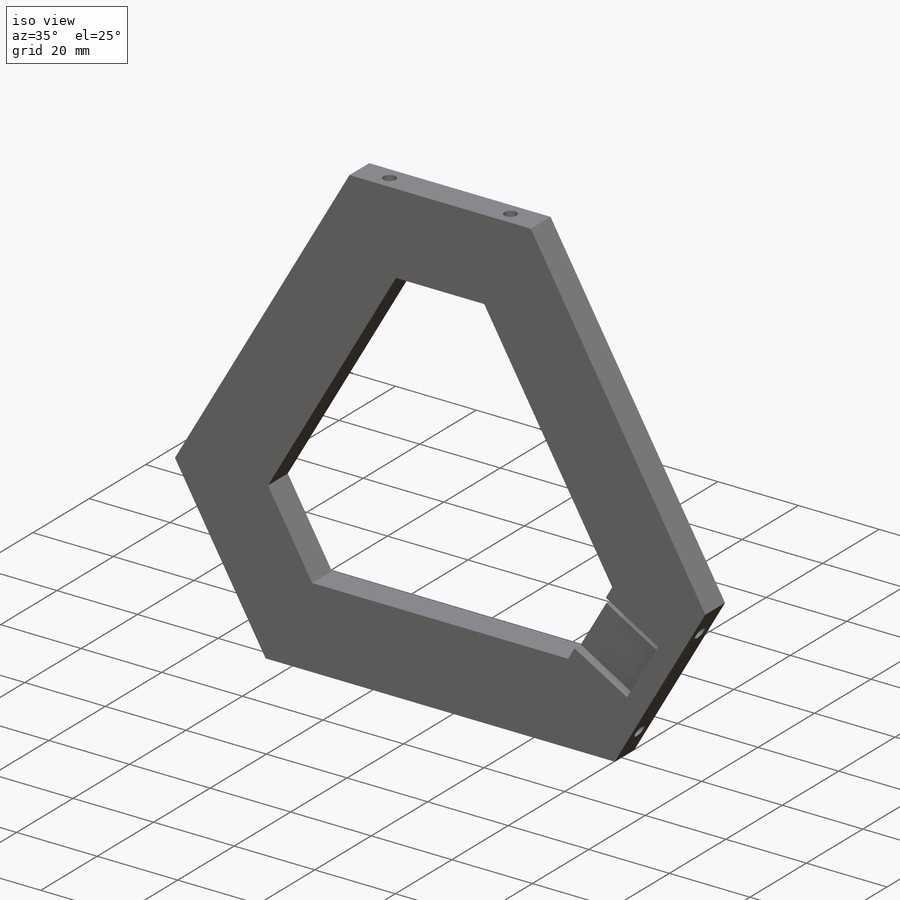
[diagram: iso view]
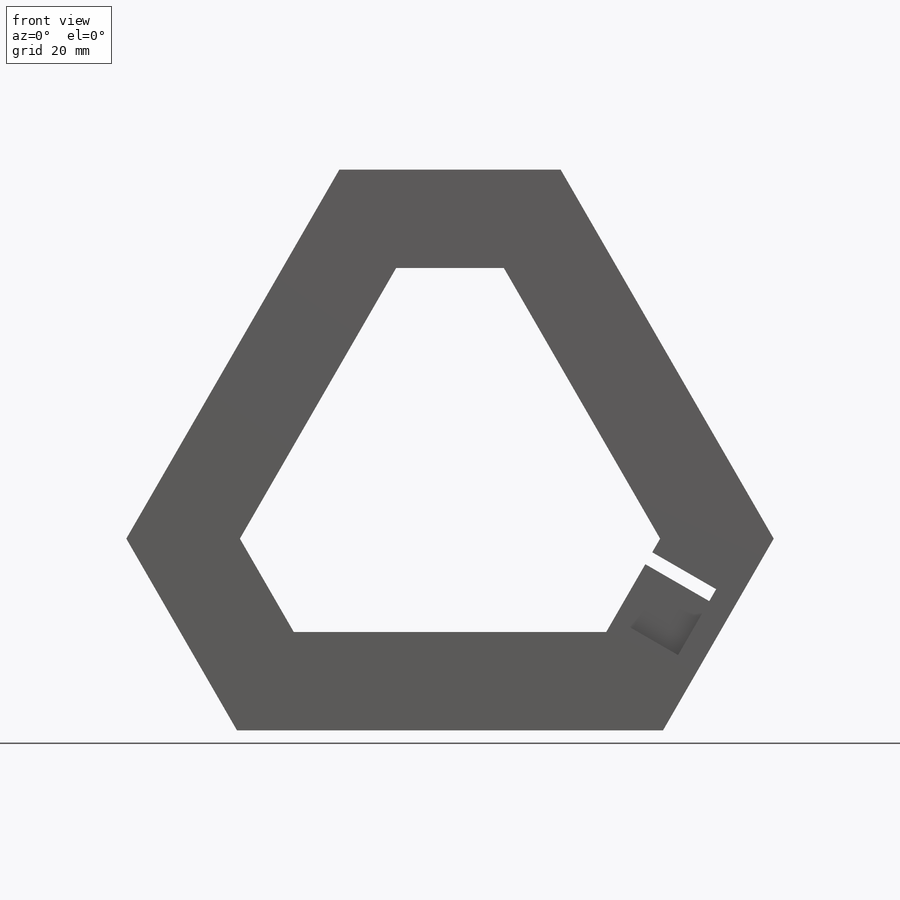
[diagram: front view]
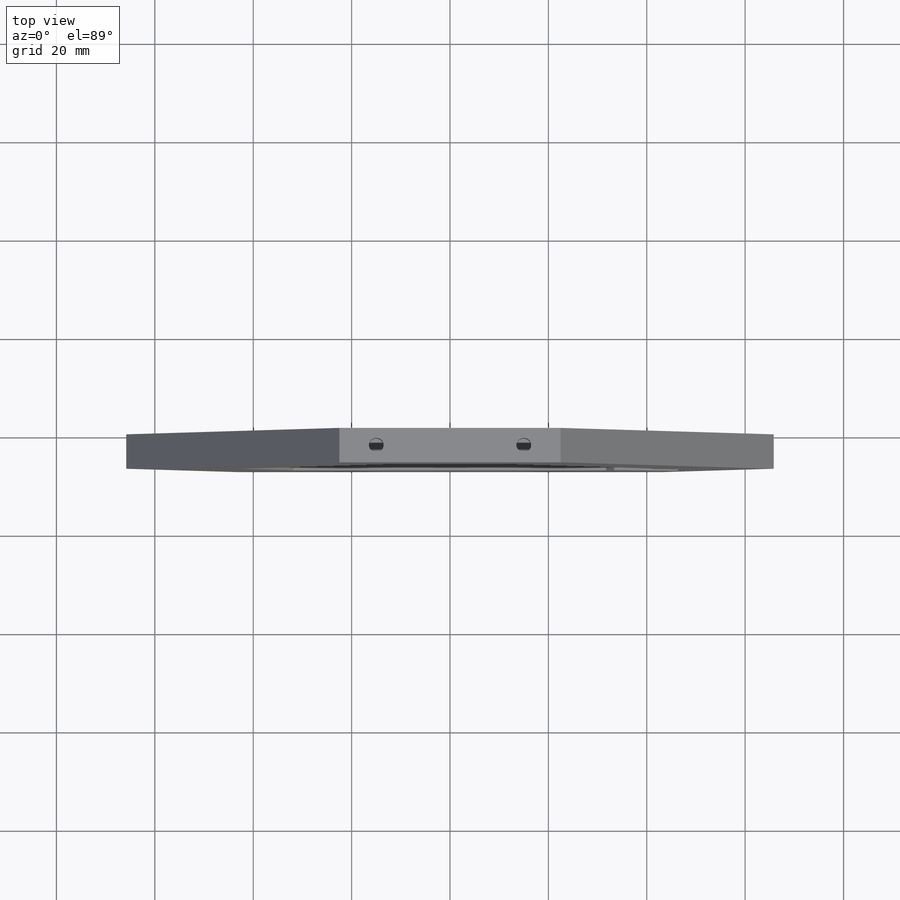
[diagram: top view]
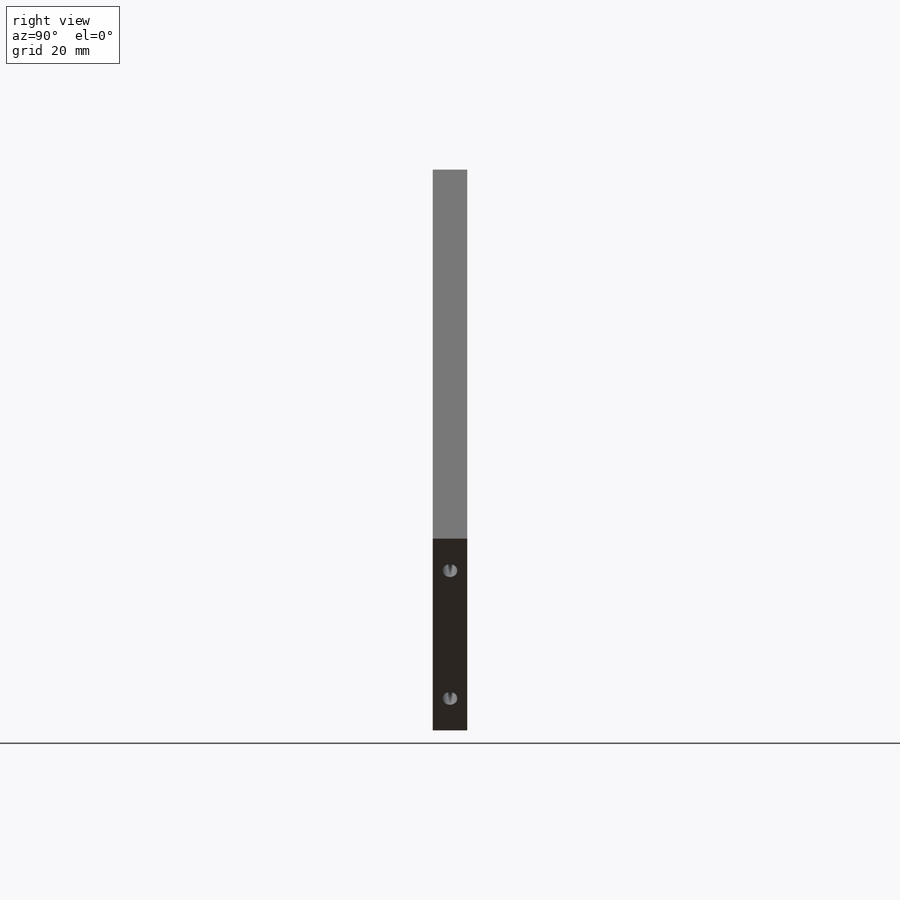
[diagram: right view]
SOLIDWORKS PART (.sldprt)
format: sldprt  version: not decoded by parser v0  size: 289,792 bytes
history: native  units: mm
features: sketch x8, cut_extrude x6, plane x3, material x1, extrude x1 (+9 scaffold rows collapsed)
feature tree (28):
  scaffold x9  (default folders/planes/origin — collapsed)
  material  "材質 <未指定>"
  plane  "前基準面"
  plane  "上基準面"
  plane  "右基準面"
  sketch  "草圖1"  dims[c1.D1=120.0mm c1.D2=70.0mm c1.D3=15.0mm c1.D4=30.0mm c1.D6=~106.243557mm c2.D2=~106.243557mm c2.D3=45.0mm c3.D2=63.0mm c3.D1=3.0 c3.D5=3.0]
  extrude  "填料-伸長1"  Depth=7mm
  sketch  "草圖11"
  sketch  "草圖12"  dims[D1=3.0mm D2=15.0mm]
  cut_extrude  "除料-伸長1"  Depth=12mm
  sketch  "草圖13"  dims[D1=3.0mm D2=15.0mm]
  cut_extrude  "除料-伸長2"  Depth=12mm
  sketch  "草圖14"  dims[D1=3.0mm D2=15.0mm]
  cut_extrude  "除料-伸長3"  Depth=12mm
  sketch  "草圖15"  dims[D1=0.0mm D2=20.0mm]
  cut_extrude  "除料-伸長4"  [1 undecoded]
  sketch  "草圖16"  dims[D1=15.5mm D2=15.0mm D3=7.75mm]
  cut_extrude  "除料-伸長5"  Depth=2.2mm
  sketch  "草圖17"  dims[D1=2.8mm]
  cut_extrude  "除料-伸長6"  [1 undecoded]
decode coverage: 12 of 15 modeling features carry decoded parameters
note: ~ marks probable driven/reference dimensions
note: 2 parameter values undecoded
note: suppression state not decoded; provenance and decode notes live in map.json
